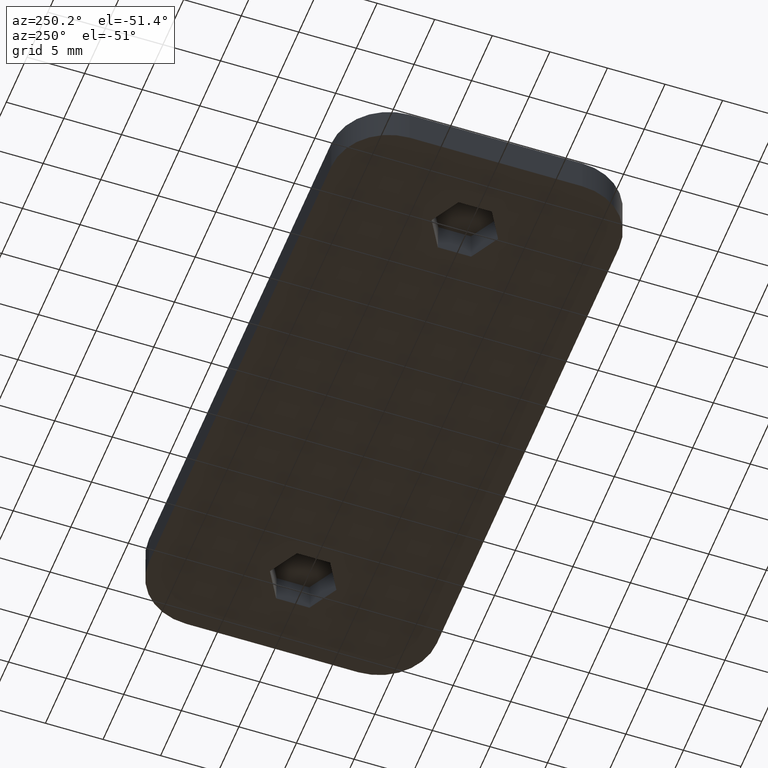
[diagram: clean part render]
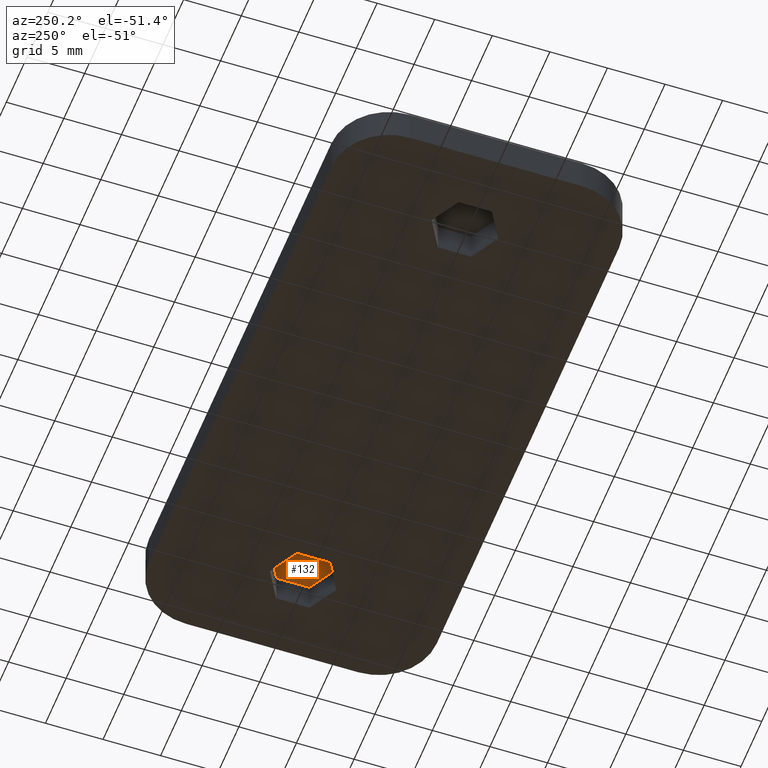
[diagram: same view with one face highlighted and labeled with its STEP entity id]
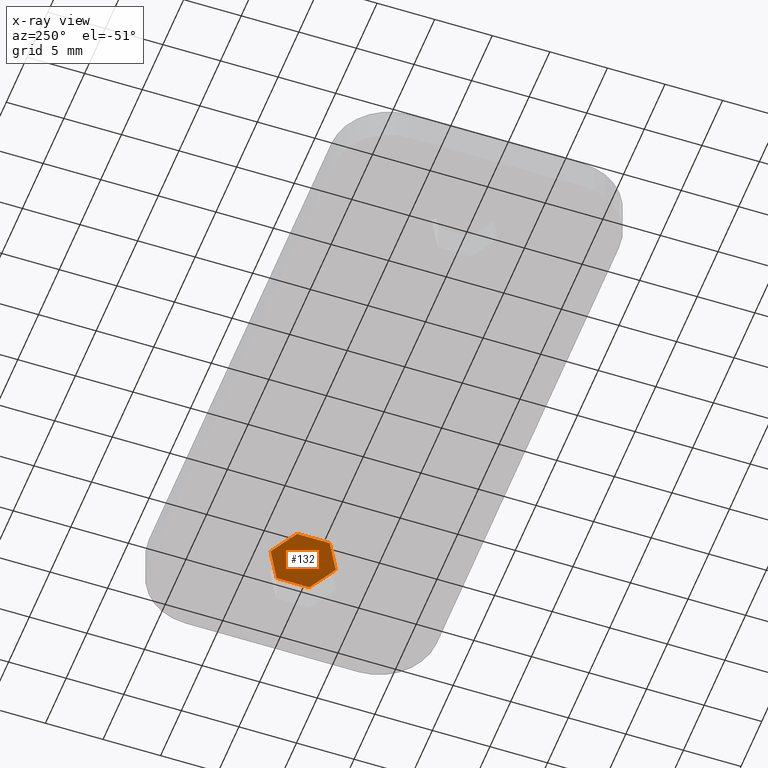
[diagram: x-ray of the same camera — body ghosted, the highlighted face saturated]
A machine part, auxiliary view. The second image highlights one B-rep face of the part: STEP entity #132.
The next image is the same camera in x-ray: the body ghosted, the highlighted face saturated — about 0% of this face is hidden behind the body in this view.
In plain terms, the highlighted planar face has unit normal (0, 0, 1).
Its self-contained STEP definition (entity closure, byte-faithful):
#132 = ADVANCED_FACE( '', ( #260 ), #261, .F. );
#260 = FACE_OUTER_BOUND( '', #393, .T. );
#261 = PLANE( '', #394 );
#393 = EDGE_LOOP( '', ( #859, #860, #861, #862, #863, #864 ) );
#394 = AXIS2_PLACEMENT_3D( '', #865, #866, #867 );
#859 = ORIENTED_EDGE( '', *, *, #1018, .F. );
#860 = ORIENTED_EDGE( '', *, *, #1028, .F. );
#861 = ORIENTED_EDGE( '', *, *, #1026, .F. );
#862 = ORIENTED_EDGE( '', *, *, #1024, .F. );
#863 = ORIENTED_EDGE( '', *, *, #1022, .F. );
#864 = ORIENTED_EDGE( '', *, *, #1020, .F. );
#865 = CARTESIAN_POINT( '', ( 22.0000000000000, -1.44337567297406, 2.60000000000001 ) );
#866 = DIRECTION( '', ( 0.000000000000000, 6.12303176911189E-017, 1.00000000000000 ) );
#867 = DIRECTION( '', ( 1.00000000000000, 4.99600361081321E-016, -3.05906888276070E-032 ) );
#1018 = EDGE_CURVE( '', #1258, #1260, #1261, .F. );
#1020 = EDGE_CURVE( '', #1260, #1263, #1264, .F. );
#1022 = EDGE_CURVE( '', #1263, #1266, #1267, .F. );
#1024 = EDGE_CURVE( '', #1266, #1269, #1270, .F. );
#1026 = EDGE_CURVE( '', #1269, #1272, #1273, .F. );
#1028 = EDGE_CURVE( '', #1272, #1258, #1275, .F. );
#1258 = VERTEX_POINT( '', #1626 );
#1260 = VERTEX_POINT( '', #1629 );
#1261 = LINE( '', #1630, #1631 );
#1263 = VERTEX_POINT( '', #1634 );
#1264 = LINE( '', #1635, #1636 );
#1266 = VERTEX_POINT( '', #1639 );
#1267 = LINE( '', #1640, #1641 );
#1269 = VERTEX_POINT( '', #1644 );
#1270 = LINE( '', #1645, #1646 );
#1272 = VERTEX_POINT( '', #1649 );
#1273 = LINE( '', #1650, #1651 );
#1275 = LINE( '', #1654, #1655 );
#1626 = CARTESIAN_POINT( '', ( 19.5000000000000, -2.83434737648597, 2.60000000000001 ) );
#1629 = CARTESIAN_POINT( '', ( 21.9546168311866, -1.41717368824299, 2.60000000000001 ) );
#1630 = CARTESIAN_POINT( '', ( -7.27269158440670, -18.2915680696740, 2.60000000000001 ) );
#1631 = VECTOR( '', #1824, 1000.00000000000 );
#1634 = CARTESIAN_POINT( '', ( 21.9546168311866, 1.41717368824299, 2.60000000000001 ) );
#1635 = CARTESIAN_POINT( '', ( 21.9546168311866, -1.44337567297405, 2.60000000000001 ) );
#1636 = VECTOR( '', #1826, 1000.00000000000 );
#1639 = CARTESIAN_POINT( '', ( 19.5000000000000, 2.83434737648598, 2.60000000000001 ) );
#1640 = CARTESIAN_POINT( '', ( -6.02269158440671, 17.5698802331870, 2.60000000000000 ) );
#1641 = VECTOR( '', #1828, 1000.00000000000 );
#1644 = CARTESIAN_POINT( '', ( 17.0453831688134, 1.41717368824299, 2.60000000000001 ) );
#1645 = CARTESIAN_POINT( '', ( -9.72730841559332, -14.0400470049450, 2.60000000000001 ) );
#1646 = VECTOR( '', #1830, 1000.00000000000 );
#1649 = CARTESIAN_POINT( '', ( 17.0453831688134, -1.41717368824298, 2.60000000000001 ) );
#1650 = CARTESIAN_POINT( '', ( 17.0453831688134, -1.44337567297407, 2.60000000000001 ) );
#1651 = VECTOR( '', #1832, 1000.00000000000 );
#1654 = CARTESIAN_POINT( '', ( -8.47730841559333, 13.3183591684580, 2.60000000000000 ) );
#1655 = VECTOR( '', #1834, 1000.00000000000 );
#1824 = DIRECTION( '', ( -0.866025403784439, -0.500000000000000, 3.06151588455594E-017 ) );
#1826 = DIRECTION( '', ( 4.99600361081321E-016, -1.00000000000000, 6.12303176911189E-017 ) );
#1828 = DIRECTION( '', ( 0.866025403784439, -0.500000000000000, 3.06151588455594E-017 ) );
#1830 = DIRECTION( '', ( 0.866025403784439, 0.500000000000000, -3.06151588455594E-017 ) );
#1832 = DIRECTION( '', ( 1.11022302462516E-016, 1.00000000000000, -6.12303176911189E-017 ) );
#1834 = DIRECTION( '', ( -0.866025403784439, 0.500000000000000, -3.06151588455594E-017 ) );